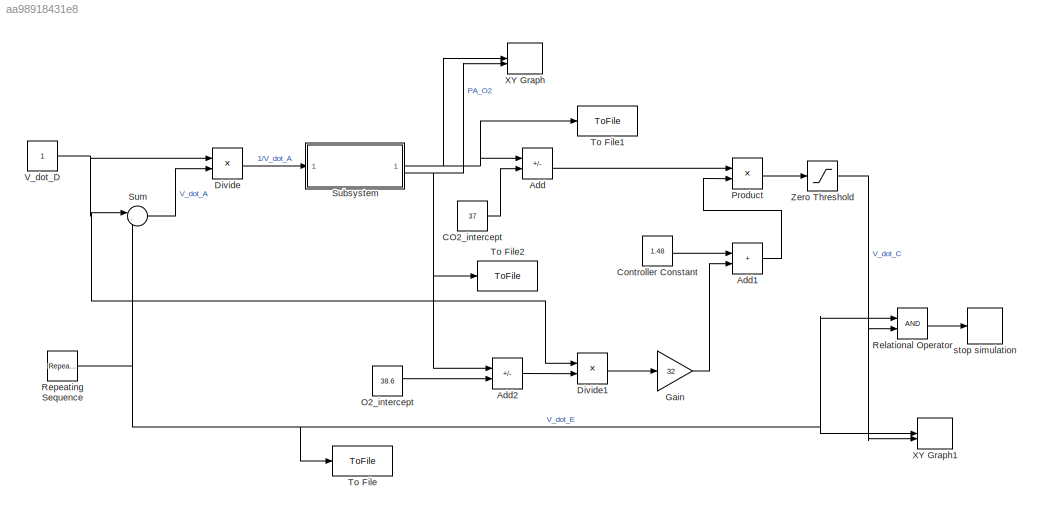
MODEL slx_aa98918431e8
KIND model
CONFIG AbsTol = auto
CONFIG EnableMultiTasking = off
CONFIG FixedStep = auto
CONFIG MaxStep = auto
CONFIG MinStep = auto
CONFIG RelTol = 1e-3
CONFIG SampleTimeConstraint = Unconstrained
CONFIG SolverName = VariableStepAuto
CONFIG StartTime = 0.0
CONFIG StopTime = 10.0
BLOCK [Sum] Add
  IconShape = rectangular
  Inputs = +-
BLOCK [Sum] Add1
  IconShape = rectangular
BLOCK [Sum] Add2
  IconShape = rectangular
  Inputs = +-
BLOCK [Constant] CO2_intercept
  Value = 37
BLOCK [Constant] Controller Constant
  Value = 1.48
BLOCK [Product] Divide
  Inputs = */
BLOCK [Product] Divide1
  Inputs = */
BLOCK [Gain] Gain
  Gain = 32
BLOCK [Constant] O2_intercept
  Value = 38.6
BLOCK [Product] Product
BLOCK [RelationalOperator] Relational Operator
  InputSameDT = off
  OutDataTypeStr = boolean
  RndMeth = Simplest
BLOCK [Reference] Repeating Sequence  REF=simulink/Sources/Repeating
Sequence
  SourceBlock = simulink/Sources/Repeating\nSequence
  SourceType = Repeating table
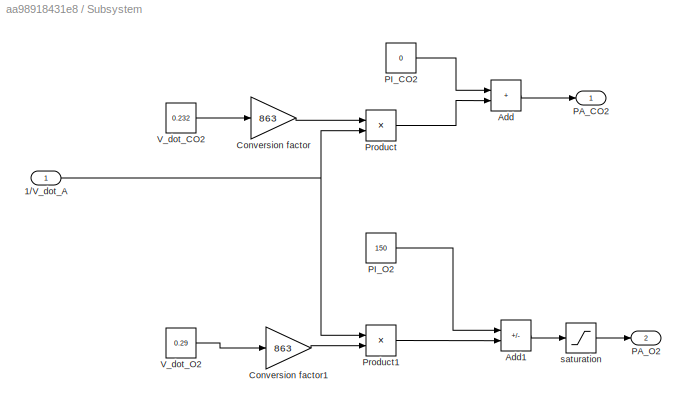
BLOCK [SubSystem] Subsystem
BLOCK [Inport] Subsystem/1//V_dot_A
BLOCK [Sum] Subsystem/Add
  IconShape = rectangular
BLOCK [Sum] Subsystem/Add1
  IconShape = rectangular
  Inputs = +-
BLOCK [Gain] Subsystem/Conversion factor
  Gain = 863
BLOCK [Gain] Subsystem/Conversion factor1
  Gain = 863
BLOCK [Outport] Subsystem/PA_CO2
BLOCK [Outport] Subsystem/PA_O2
  Port = 2
BLOCK [Constant] Subsystem/PI_CO2
  Value = 0
BLOCK [Constant] Subsystem/PI_O2
  Value = 150
BLOCK [Product] Subsystem/Product
BLOCK [Product] Subsystem/Product1
BLOCK [Constant] Subsystem/V_dot_CO2
  Value = 0.232
BLOCK [Constant] Subsystem/V_dot_O2
  Value = 0.29
BLOCK [Saturate] Subsystem/saturation
  LowerLimit = 40
  UpperLimit = 150
BLOCK [Sum] Sum
  Inputs = |-+
BLOCK [ToFile] To File
  Filename = V_dot_E.mat
  SaveFormat = Timeseries
BLOCK [ToFile] To File1
  Filename = PA_CO2.mat
  SaveFormat = Timeseries
BLOCK [ToFile] To File2
  Filename = PA_O2.mat
  SaveFormat = Timeseries
BLOCK [Constant] V_dot_D
BLOCK [Record] XY Graph
  CompatibilityTag = XY
  FileSettingsInternal = {"entries":[{"content":{"excelSettings":{"content":{},"type":"Streamout.ExcelSettings"}},"type":"Streamout.FileSettingStorage","uuid":"81a3149f-6ff3-4546-b31e-e467cdc3dbb0"}],"packageUris":["http://schema.mathworks.com/mf0/streamout_blocks/R2020a"],"version":"1.0"}
  Layout = [1 1]
  SignalsInternal = {"entries":[{"content":{"signals":[{"content":{"blockPath":["project_1818027/XY Graph"],"channel":[],"dimensions":[1],"domain":"project_1818027/XY Graph","lineColor":"#a2142f","plots":[1],"port":1,"sid":[""],"signalID":68,"signalName":"Subsystem:1"},"type":"RecordBlkView.Signal","uuid":"84af3b74-4cac-4756-9d36-38824816c752"},{"content":{"blockPath":["project_1818027/XY Graph"],"channel":[],"dimens...<+389ch>
  VisualizationBindings = {"xyplotplugin":{"info":[{"series":[{"bindingParametersList":[{"parameter":"X-Axis","signalID":68,"signalName":"Subsystem:1"},{"parameter":"Y-Axis","signalID":72,"signalName":"PA_O2"}],"seriesID":20253}],"subplotID":1}]}}
BLOCK [Record] XY Graph1
  CompatibilityTag = XY
  FileSettingsInternal = {"entries":[{"content":{"excelSettings":{"content":{},"type":"Streamout.ExcelSettings"}},"type":"Streamout.FileSettingStorage","uuid":"b4c82504-c5ee-476a-86e2-babfc9d21630"}],"packageUris":["http://schema.mathworks.com/mf0/streamout_blocks/R2020a"],"version":"1.0"}
  Layout = [1 1]
  SignalsInternal = {"entries":[{"content":{"signals":[{"content":{"blockPath":["project_1818027/XY Graph1"],"channel":[],"dimensions":[1],"domain":"project_1818027/XY Graph1","lineColor":"#a2142f","plots":[1],"port":1,"sid":[""],"signalID":76,"signalName":"V_dot_E"},"type":"RecordBlkView.Signal","uuid":"d94f61b9-f15c-4244-98d6-26cdee56de4c"},{"content":{"blockPath":["project_1818027/XY Graph1"],"channel":[],"dimensi...<+391ch>
  VisualizationBindings = {"xyplotplugin":{"info":[{"series":[{"bindingParametersList":[{"parameter":"X-Axis","signalID":76,"signalName":"V_dot_E"},{"parameter":"Y-Axis","signalID":80,"signalName":"V_dot_C"}],"seriesID":64281}],"subplotID":1}]}}
BLOCK [Saturate] Zero Threshold
  LowerLimit = 0
  UpperLimit = 20
BLOCK [Stop] stop simulation
LINE Add1:1 -> Product:2
LINE Add2:1 -> Divide1:2
LINE Add:1 -> Product:1
LINE CO2_intercept:1 -> Add:2
LINE Controller Constant:1 -> Add1:1
LINE Divide1:1 -> Gain:1
LINE Divide:1 -> Subsystem:1
LINE Gain:1 -> Add1:2
LINE O2_intercept:1 -> Add2:2
LINE Product:1 -> Zero Threshold:1
LINE Relational Operator:1 -> stop simulation:1
NET Repeating Sequence:1 -> Relational Operator:1, Sum:2, To File:1, XY Graph1:1
NET Subsystem/1//V_dot_A:1 -> Subsystem/Product1:1, Subsystem/Product:2
LINE Subsystem/Add1:1 -> Subsystem/saturation:1
LINE Subsystem/Add:1 -> Subsystem/PA_CO2:1
LINE Subsystem/Conversion factor1:1 -> Subsystem/Product1:2
LINE Subsystem/Conversion factor:1 -> Subsystem/Product:1
LINE Subsystem/PI_CO2:1 -> Subsystem/Add:1
LINE Subsystem/PI_O2:1 -> Subsystem/Add1:1
LINE Subsystem/Product1:1 -> Subsystem/Add1:2
LINE Subsystem/Product:1 -> Subsystem/Add:2
LINE Subsystem/V_dot_CO2:1 -> Subsystem/Conversion factor:1
LINE Subsystem/V_dot_O2:1 -> Subsystem/Conversion factor1:1
LINE Subsystem/saturation:1 -> Subsystem/PA_O2:1
NET Subsystem:1 -> Add:1, To File1:1, XY Graph:1
NET Subsystem:2 -> Add2:1, To File2:1, XY Graph:2
LINE Sum:1 -> Divide:2
NET V_dot_D:1 -> Divide1:1, Divide:1, Sum:1
NET Zero Threshold:1 -> Relational Operator:2, XY Graph1:2
note: NET lines group one-source signal fan-out (src -> all destinations, sorted); 1:1 wires keep LINE
